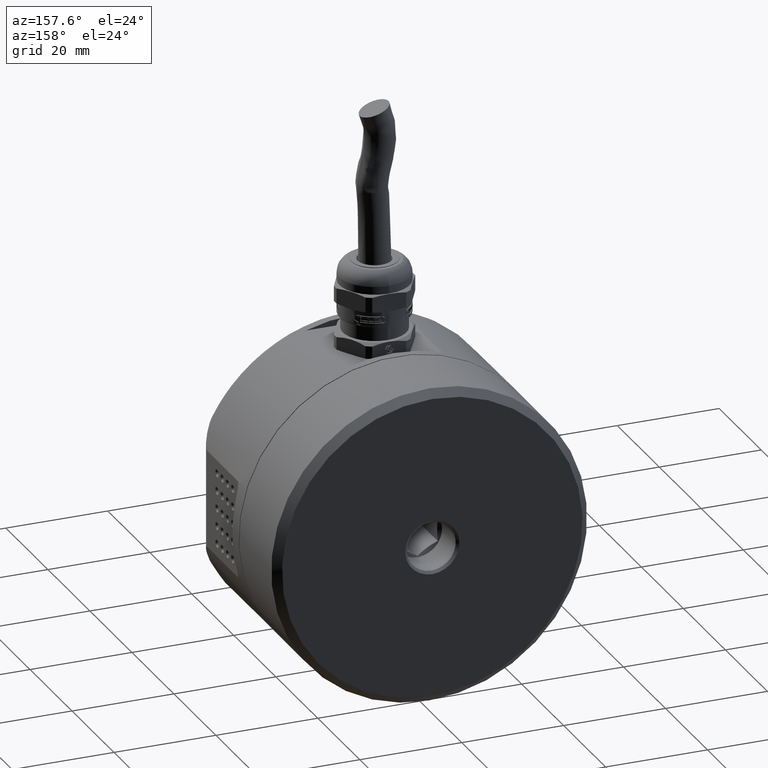
[diagram: clean part render]
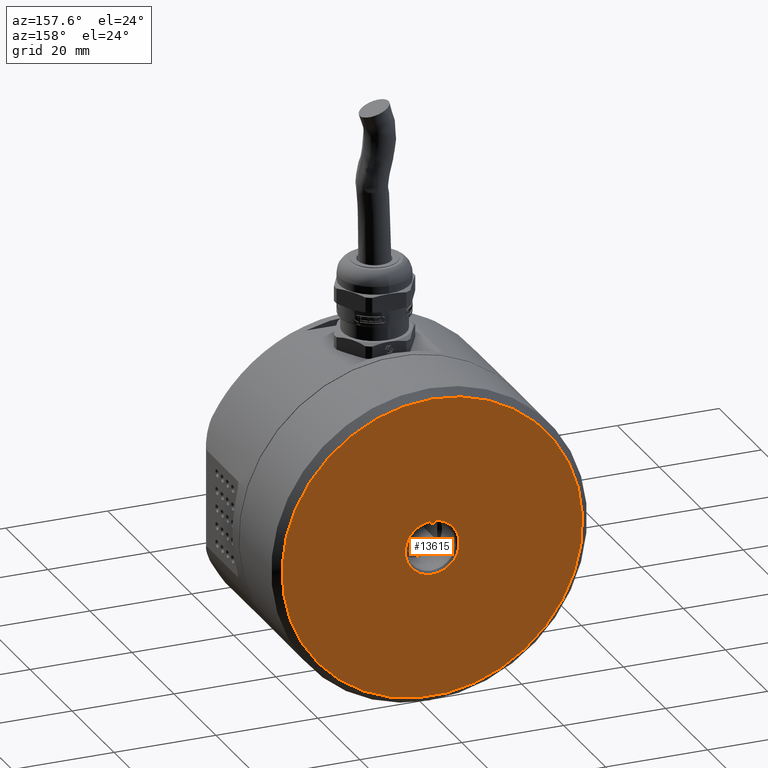
[diagram: same view with one face highlighted and labeled with its STEP entity id]
A machine part, auxiliary view. The second image highlights one B-rep face of the part: STEP entity #13615.
In plain terms, the highlighted planar face has unit normal (0, -1, -0).
Its self-contained STEP definition (entity closure, byte-faithful):
#629 = AXIS2_PLACEMENT_3D ( 'NONE', #11776, #10444, #7719 ) ;
#716 = FACE_BOUND ( 'NONE', #7323, .T. ) ;
#4850 = VERTEX_POINT ( 'NONE', #7486 ) ;
#4934 = FACE_OUTER_BOUND ( 'NONE', #11134, .T. ) ;
#6152 = DIRECTION ( 'NONE',  ( 3.333316502533546444E-16, -1.000000000000000000, -5.517171690293078260E-17 ) ) ;
#7323 = EDGE_LOOP ( 'NONE', ( #14311 ) ) ;
#7485 = PLANE ( 'NONE',  #16879 ) ;
#7486 = CARTESIAN_POINT ( 'NONE',  ( -2.121925636587972610E-16, 46.00000000000000000, 5.299999999999998934 ) ) ;
#7719 = DIRECTION ( 'NONE',  ( 5.551115123125780853E-17, 0.000000000000000000, 1.000000000000000000 ) ) ;
#8536 = CARTESIAN_POINT ( 'NONE',  ( 1.131177296137641620E-15, 46.00000000000000000, 29.50000000000000000 ) ) ;
#8670 = DIRECTION ( 'NONE',  ( 5.551115123125780853E-17, 0.000000000000000000, 1.000000000000000000 ) ) ;
#9988 = CIRCLE ( 'NONE', #14232, 29.50000000000000000 ) ;
#10029 = VERTEX_POINT ( 'NONE', #8536 ) ;
#10444 = DIRECTION ( 'NONE',  ( 3.333316502533546444E-16, -1.000000000000000000, -5.517171690293078260E-17 ) ) ;
#11134 = EDGE_LOOP ( 'NONE', ( #13857 ) ) ;
#11404 = DIRECTION ( 'NONE',  ( -3.333316502533546444E-16, 1.000000000000000000, 5.517171690293078260E-17 ) ) ;
#11776 = CARTESIAN_POINT ( 'NONE',  ( -5.064016651844635864E-16, 46.00000000000000000, -1.862681752221586144E-16 ) ) ;
#12432 = EDGE_CURVE ( 'NONE', #4850, #4850, #15251, .T. ) ;
#12738 = CARTESIAN_POINT ( 'NONE',  ( -5.064016651844635864E-16, 46.00000000000000000, -1.862681752221586144E-16 ) ) ;
#12865 = CARTESIAN_POINT ( 'NONE',  ( -3.999999999999999112, 46.00000000000000000, 3.577642970287245332E-17 ) ) ;
#13615 = ADVANCED_FACE ( 'NONE', ( #4934, #716 ), #7485, .F. ) ;
#13857 = ORIENTED_EDGE ( 'NONE', *, *, #17102, .T. ) ;
#14232 = AXIS2_PLACEMENT_3D ( 'NONE', #12738, #11404, #8670 ) ;
#14311 = ORIENTED_EDGE ( 'NONE', *, *, #12432, .T. ) ;
#15251 = CIRCLE ( 'NONE', #629, 5.299999999999998934 ) ;
#16879 = AXIS2_PLACEMENT_3D ( 'NONE', #12865, #6152, #16999 ) ;
#16999 = DIRECTION ( 'NONE',  ( 5.551115123125780853E-17, -5.517171690293076411E-17, 1.000000000000000000 ) ) ;
#17102 = EDGE_CURVE ( 'NONE', #10029, #10029, #9988, .T. ) ;